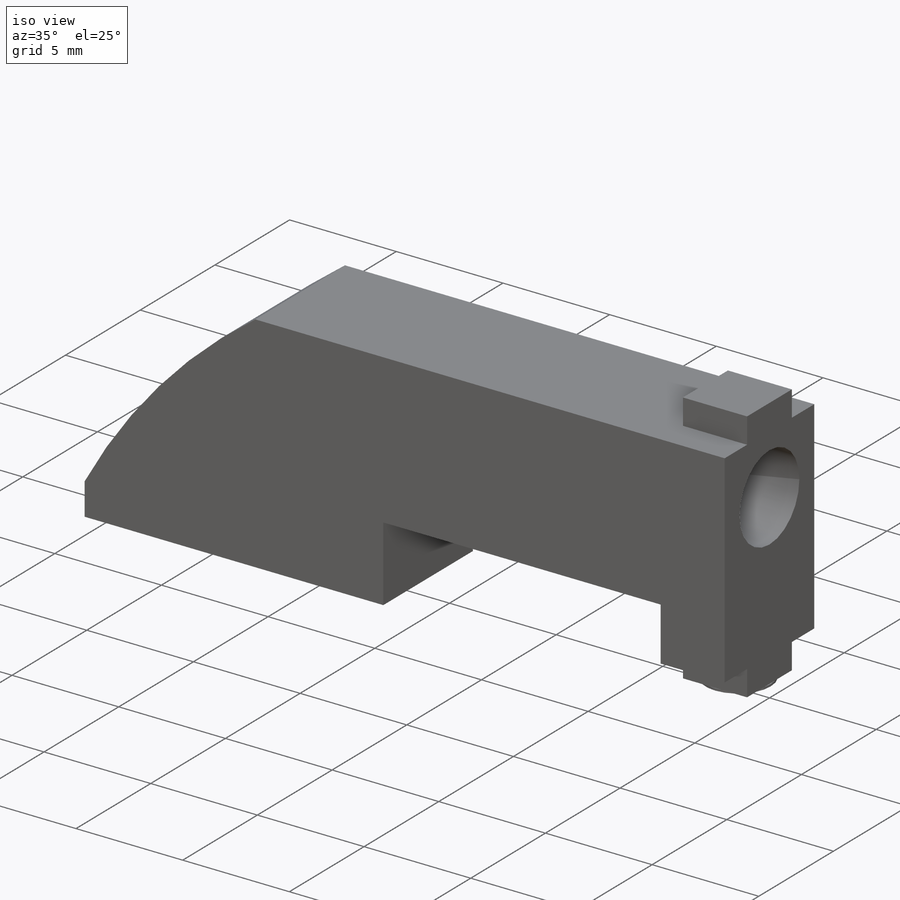
[diagram: iso view]
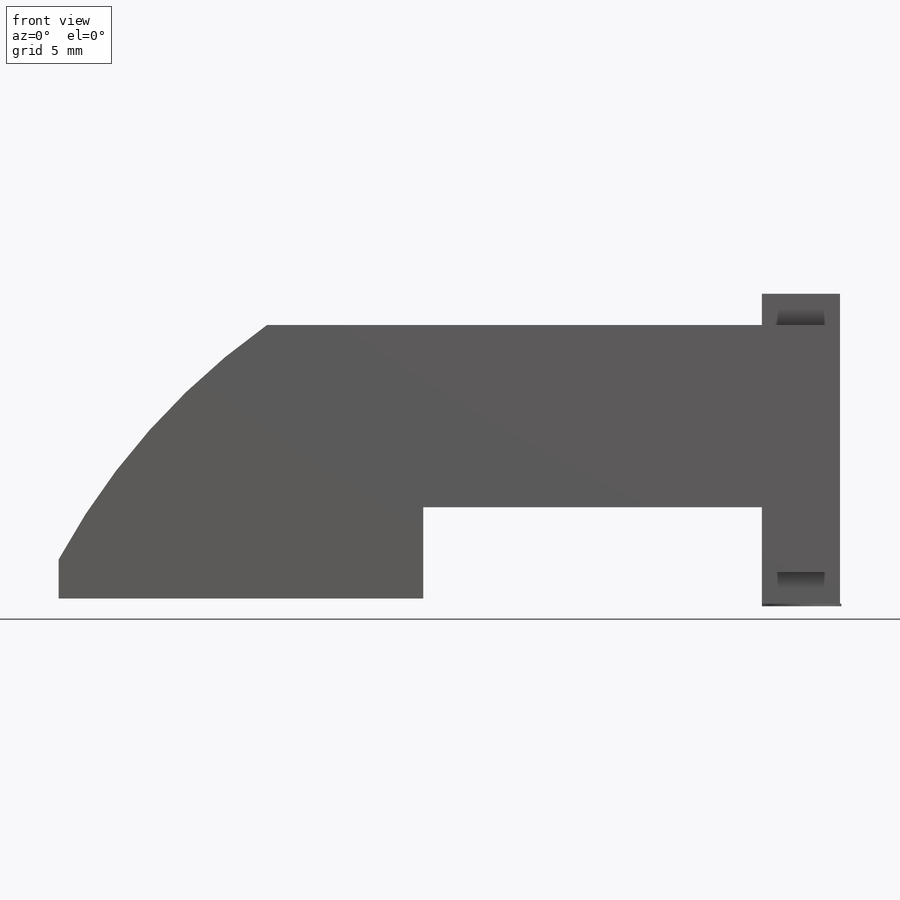
[diagram: front view]
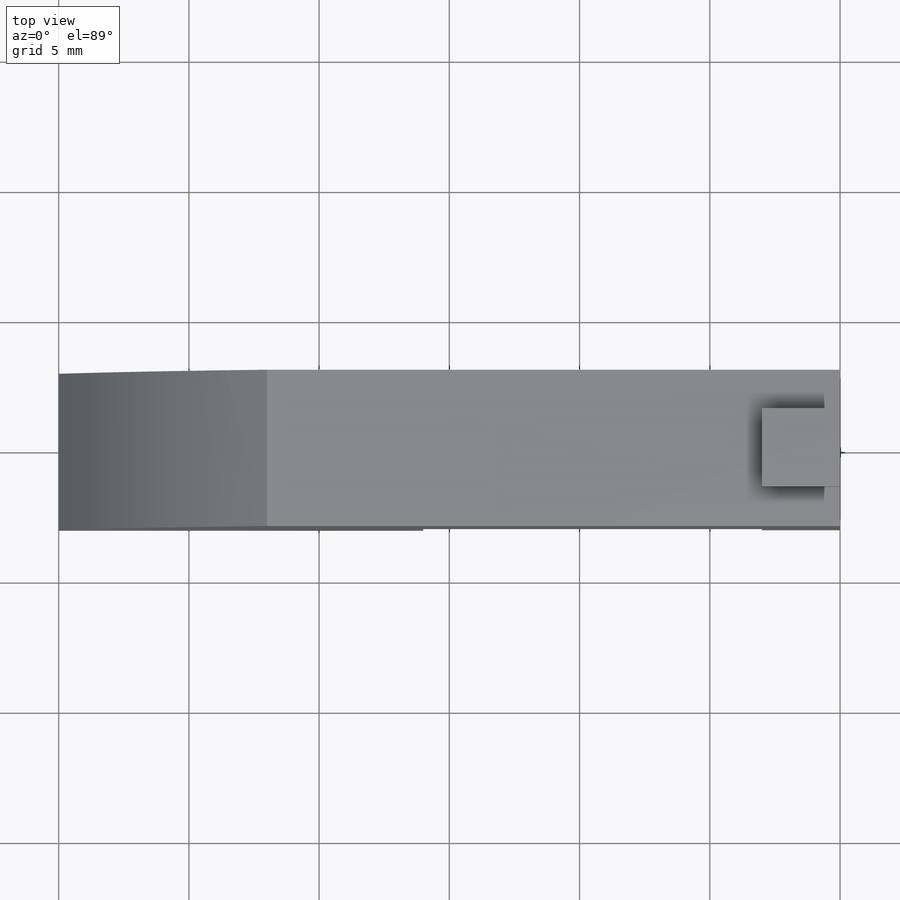
[diagram: top view]
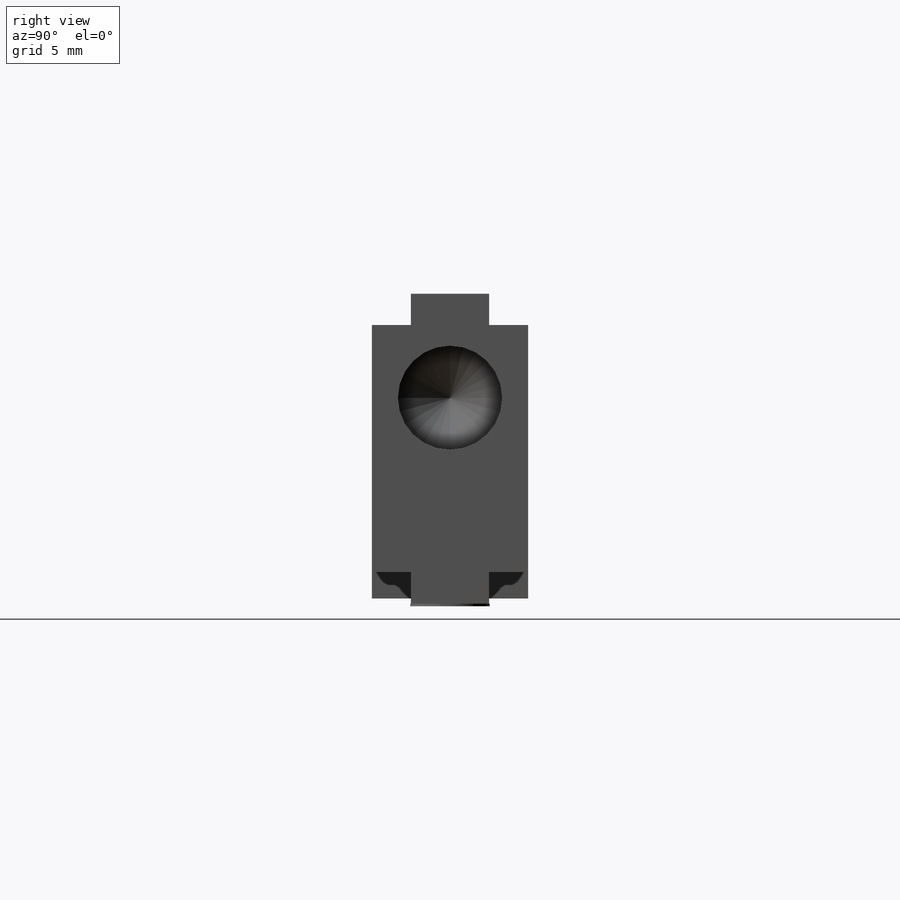
[diagram: right view]
SOLIDWORKS PART (.sldprt)
format: sldprt  version: not decoded by parser v0  size: 208,384 bytes
history: native  units: mm
features: sketch x6, extrude x4, plane x3, material x1, hole x1 (+12 scaffold rows collapsed)
feature tree (27):
  scaffold x12  (default folders/planes/origin — collapsed)
  material  "Alliage 7079"
  plane  "Face"
  plane  "Dessus"
  plane  "Droite"
  sketch  "Esquisse1"  dims[c1.D6=~26.601872mm c1.D1=30.0mm c1.D2=10.5mm c1.D3=1.5mm c1.D4=13.0mm c1.D5=7.0mm c2.D6=3.0mm c2.D7=22.0mm c2.D8=10.5mm c2.D1=9.5mm c3.D8=8.0mm c3.D9=14.0mm c3.D10=~23.366551mm c4.D8=8.0mm]
  extrude  "Extrusion1"  Depth=6mm
  sketch  "Esquisse2"  dims[D1=3.0mm D2=3.0mm D3=3.0mm]
  extrude  "Extrusion2"  Depth=1.2mm
  sketch  "Esquisse3"  dims[D1=3.0mm D2=3.0mm]
  extrude  "Extrusion3"  Depth=1.2mm
  hole  "Diamètre du perçage Ø4.0 (4)1"  Diameter=4mm Depth=3mm
  sketch  "Esquisse5"  dims[D1=3.0mm D2=6.7mm D3=2.8mm]
  sketch  "Esquisse4"  dims[hole-wizard template sketch: 46 standard entries collapsed; hole parameters kept: c15.Diamètre du perçage=4.0mm c15.Profondeur du perçage=3.0mm c15.D3=~14.816244mm c15.Angle de pointe=118.0deg]
  sketch  "Esquisse6"
  extrude  "Extrusion4"  Depth=0.1mm
decode coverage: 10 of 11 modeling features carry decoded parameters
note: ~ marks probable driven/reference dimensions
note: suppression state not decoded; provenance and decode notes live in map.json
